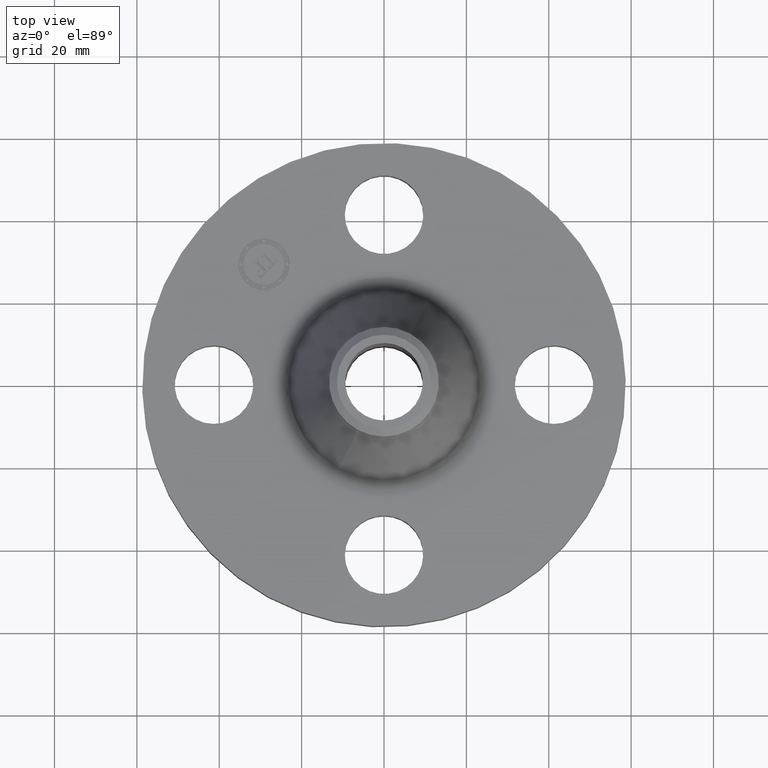
[diagram: clean part render]
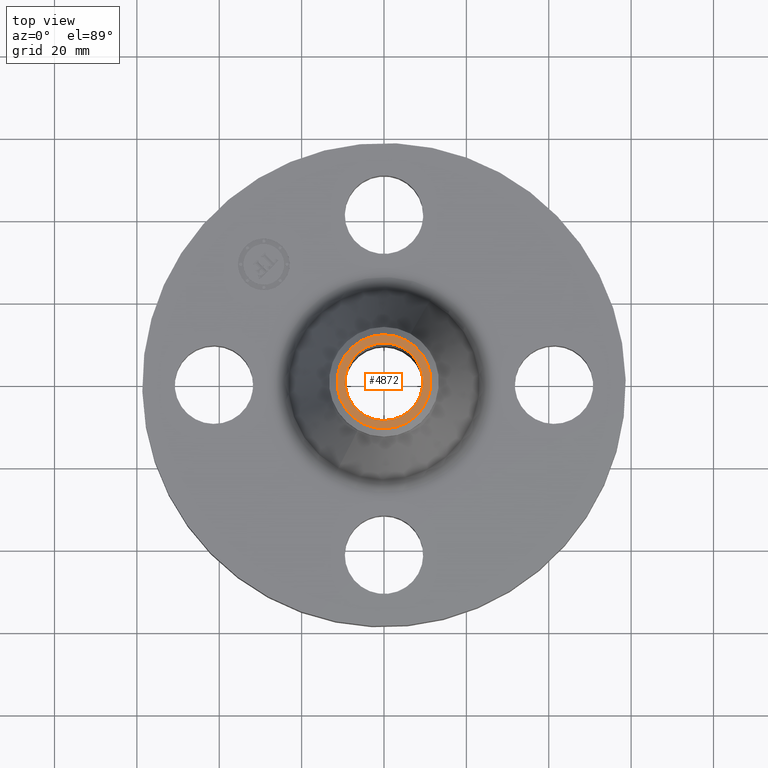
[diagram: same view with one face highlighted and labeled with its STEP entity id]
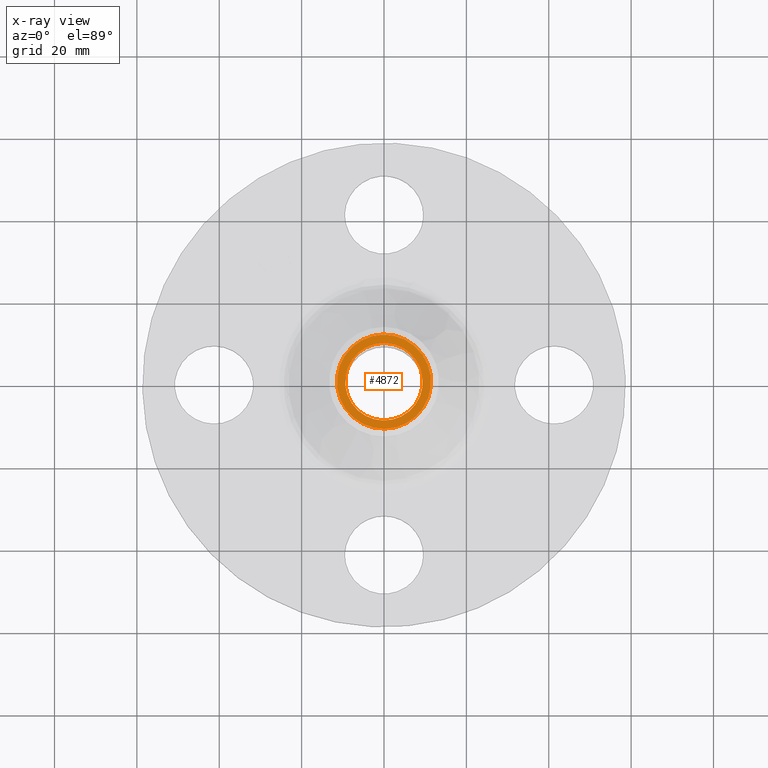
[diagram: x-ray of the same camera — body ghosted, the highlighted face saturated]
A machine part, top view. The second image highlights one B-rep face of the part: STEP entity #4872.
The next image is the same camera in x-ray: the body ghosted, the highlighted face saturated — about 0% of this face is hidden behind the body in this view.
In plain terms, the highlighted planar face has unit normal (0, 0, -1).
Its self-contained STEP definition (entity closure, byte-faithful):
#1859=AXIS2_PLACEMENT_3D('Circle Axis2P3D',#1857,#1858,$) ;
#1891=AXIS2_PLACEMENT_3D('Circle Axis2P3D',#1889,#1890,$) ;
#4848=AXIS2_PLACEMENT_3D('Plane Axis2P3D',#4845,#4846,#4847) ;
#4856=AXIS2_PLACEMENT_3D('Circle Axis2P3D',#4854,#4855,$) ;
#4865=AXIS2_PLACEMENT_3D('Circle Axis2P3D',#4863,#4864,$) ;
#1854=CARTESIAN_POINT('Vertex',(0.215616917233,-0.394684119588,2.25000000001)) ;
#1857=CARTESIAN_POINT('Axis2P3D Location',(0.,0.,2.25000000001)) ;
#1861=CARTESIAN_POINT('Vertex',(-0.215616917233,0.394684119588,2.25000000001)) ;
#1889=CARTESIAN_POINT('Axis2P3D Location',(0.,0.,2.25000000001)) ;
#4845=CARTESIAN_POINT('Axis2P3D Location',(0.,0.525000000002,2.25000000001)) ;
#4854=CARTESIAN_POINT('Axis2P3D Location',(4.36654736865E-011,-2.038775098E-011,2.25000000001)) ;
#4858=CARTESIAN_POINT('Vertex',(-0.17786687482,-0.325583130462,2.25000000001)) ;
#4860=CARTESIAN_POINT('Vertex',(0.177866874823,0.325583130462,2.25)) ;
#4863=CARTESIAN_POINT('Axis2P3D Location',(-1.28117638982E-011,1.04658189376E-011,2.25000000001)) ;
#1858=DIRECTION('Axis2P3D Direction',(-0.,0.,-0.0393700787402)) ;
#1890=DIRECTION('Axis2P3D Direction',(-0.,0.,-0.0393700787402)) ;
#4846=DIRECTION('Axis2P3D Direction',(0.,0.,-0.0393700787402)) ;
#4847=DIRECTION('Axis2P3D XDirection',(0.0393700787402,0.,0.)) ;
#4855=DIRECTION('Axis2P3D Direction',(0.,0.,-0.0393700787402)) ;
#4864=DIRECTION('Axis2P3D Direction',(0.,0.,-0.0393700787402)) ;
#4851=ORIENTED_EDGE('',*,*,#1893,.T.) ;
#4852=ORIENTED_EDGE('',*,*,#1863,.T.) ;
#4869=ORIENTED_EDGE('',*,*,#4862,.T.) ;
#4870=ORIENTED_EDGE('',*,*,#4867,.T.) ;
#4871=FACE_BOUND('',#4868,.T.) ;
#4872=ADVANCED_FACE('PartBody',(#4853,#4871),#4849,.F.) ;
#1860=CIRCLE('generated circle',#1859,0.449740157482) ;
#1892=CIRCLE('generated circle',#1891,0.449740157482) ;
#4857=CIRCLE('generated circle',#4856,0.371000000003) ;
#4866=CIRCLE('generated circle',#4865,0.371000000003) ;
#1863=EDGE_CURVE('',#1862,#1855,#1860,.F.) ;
#1893=EDGE_CURVE('',#1855,#1862,#1892,.F.) ;
#4862=EDGE_CURVE('',#4859,#4861,#4857,.T.) ;
#4867=EDGE_CURVE('',#4861,#4859,#4866,.T.) ;
#4850=EDGE_LOOP('',(#4851,#4852)) ;
#4868=EDGE_LOOP('',(#4869,#4870)) ;
#4853=FACE_OUTER_BOUND('',#4850,.T.) ;
#4849=PLANE('',#4848) ;
#1855=VERTEX_POINT('',#1854) ;
#1862=VERTEX_POINT('',#1861) ;
#4859=VERTEX_POINT('',#4858) ;
#4861=VERTEX_POINT('',#4860) ;